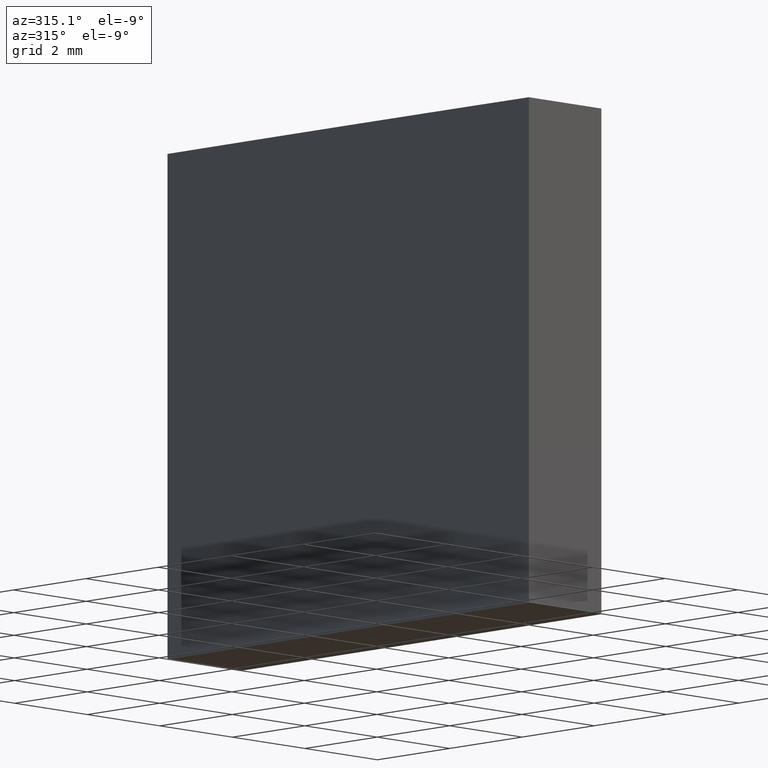
[diagram: clean part render]
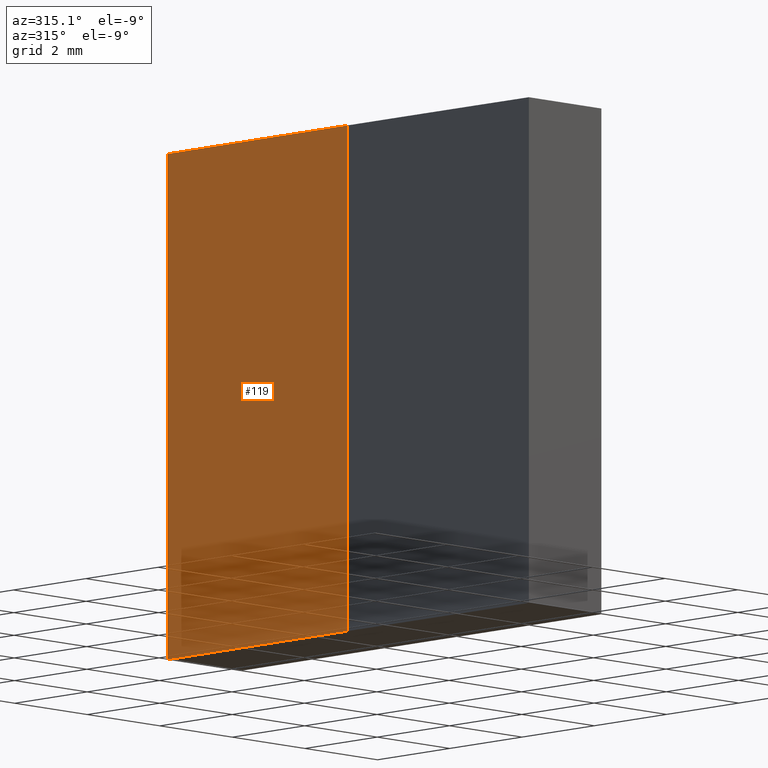
[diagram: same view with one face highlighted and labeled with its STEP entity id]
A machine part, auxiliary view. The second image highlights one B-rep face of the part: STEP entity #119.
In plain terms, the highlighted cylindrical surface (partial cylindrical patch) has radius 516.8 mm, axis along (-0, -0, -1).
Its self-contained STEP definition (entity closure, byte-faithful):
#9 = EDGE_LOOP ( 'NONE', ( #153, #64, #87, #194 ) ) ;
#33 = VECTOR ( 'NONE', #149, 1000.000000000000000 ) ;
#37 = DIRECTION ( 'NONE',  ( 0.000000000000000000, 0.000000000000000000, 1.000000000000000000 ) ) ;
#38 = AXIS2_PLACEMENT_3D ( 'NONE', #237, #165, #224 ) ;
#45 = VERTEX_POINT ( 'NONE', #242 ) ;
#58 = EDGE_CURVE ( 'NONE', #66, #45, #146, .T. ) ;
#64 = ORIENTED_EDGE ( 'NONE', *, *, #262, .F. ) ;
#66 = VERTEX_POINT ( 'NONE', #122 ) ;
#71 = CIRCLE ( 'NONE', #112, 516.7999999999999545 ) ;
#77 = CARTESIAN_POINT ( 'NONE',  ( 0.000000000000000000, 0.000000000000000000, 10.00000000000000000 ) ) ;
#87 = ORIENTED_EDGE ( 'NONE', *, *, #244, .T. ) ;
#97 = CIRCLE ( 'NONE', #38, 516.7999999999999545 ) ;
#99 = CYLINDRICAL_SURFACE ( 'NONE', #234, 516.7999999999999545 ) ;
#112 = AXIS2_PLACEMENT_3D ( 'NONE', #77, #37, #130 ) ;
#119 = ADVANCED_FACE ( 'NONE', ( #177 ), #99, .T. ) ;
#122 = CARTESIAN_POINT ( 'NONE',  ( -516.7999999999999545, 0.000000000000000000, 10.00000000000000000 ) ) ;
#130 = DIRECTION ( 'NONE',  ( 1.000000000000000000, 0.000000000000000000, 0.000000000000000000 ) ) ;
#137 = VERTEX_POINT ( 'NONE', #261 ) ;
#146 = LINE ( 'NONE', #199, #186 ) ;
#149 = DIRECTION ( 'NONE',  ( -0.000000000000000000, -0.000000000000000000, -1.000000000000000000 ) ) ;
#152 = EDGE_CURVE ( 'NONE', #137, #45, #97, .T. ) ;
#153 = ORIENTED_EDGE ( 'NONE', *, *, #58, .F. ) ;
#161 = DIRECTION ( 'NONE',  ( -0.000000000000000000, -0.000000000000000000, -1.000000000000000000 ) ) ;
#165 = DIRECTION ( 'NONE',  ( 0.000000000000000000, 0.000000000000000000, 1.000000000000000000 ) ) ;
#166 = CARTESIAN_POINT ( 'NONE',  ( 0.000000000000000000, 0.000000000000000000, 10.00000000000000000 ) ) ;
#177 = FACE_OUTER_BOUND ( 'NONE', #9, .T. ) ;
#179 = DIRECTION ( 'NONE',  ( -0.000000000000000000, -0.000000000000000000, -1.000000000000000000 ) ) ;
#180 = DIRECTION ( 'NONE',  ( -1.000000000000000000, 0.000000000000000000, 0.000000000000000000 ) ) ;
#186 = VECTOR ( 'NONE', #179, 1000.000000000000000 ) ;
#187 = CARTESIAN_POINT ( 'NONE',  ( -516.7758121274639507, 5.000000000000004441, 10.00000000000000000 ) ) ;
#194 = ORIENTED_EDGE ( 'NONE', *, *, #152, .T. ) ;
#199 = CARTESIAN_POINT ( 'NONE',  ( -516.7999999999999545, 0.000000000000000000, 10.00000000000000000 ) ) ;
#205 = CARTESIAN_POINT ( 'NONE',  ( -516.7758121274639507, 5.000000000000004441, 10.00000000000000000 ) ) ;
#224 = DIRECTION ( 'NONE',  ( 1.000000000000000000, 0.000000000000000000, 0.000000000000000000 ) ) ;
#234 = AXIS2_PLACEMENT_3D ( 'NONE', #166, #161, #180 ) ;
#237 = CARTESIAN_POINT ( 'NONE',  ( 0.000000000000000000, 0.000000000000000000, 0.000000000000000000 ) ) ;
#242 = CARTESIAN_POINT ( 'NONE',  ( -516.7999999999999545, 0.000000000000000000, 0.000000000000000000 ) ) ;
#244 = EDGE_CURVE ( 'NONE', #252, #137, #266, .T. ) ;
#252 = VERTEX_POINT ( 'NONE', #187 ) ;
#261 = CARTESIAN_POINT ( 'NONE',  ( -516.7758121274639507, 5.000000000000004441, 0.000000000000000000 ) ) ;
#262 = EDGE_CURVE ( 'NONE', #252, #66, #71, .T. ) ;
#266 = LINE ( 'NONE', #205, #33 ) ;